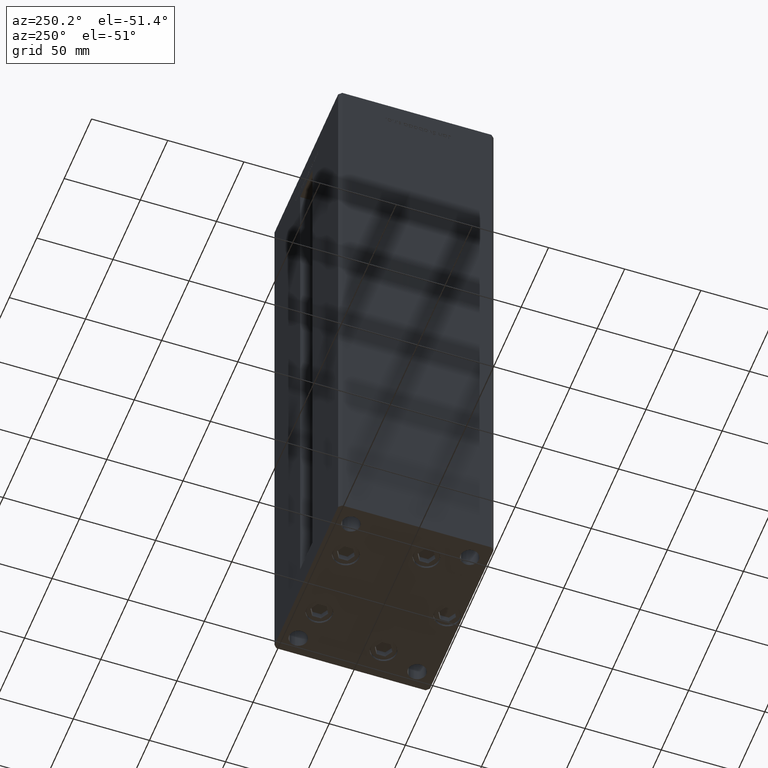
[diagram: clean part render]
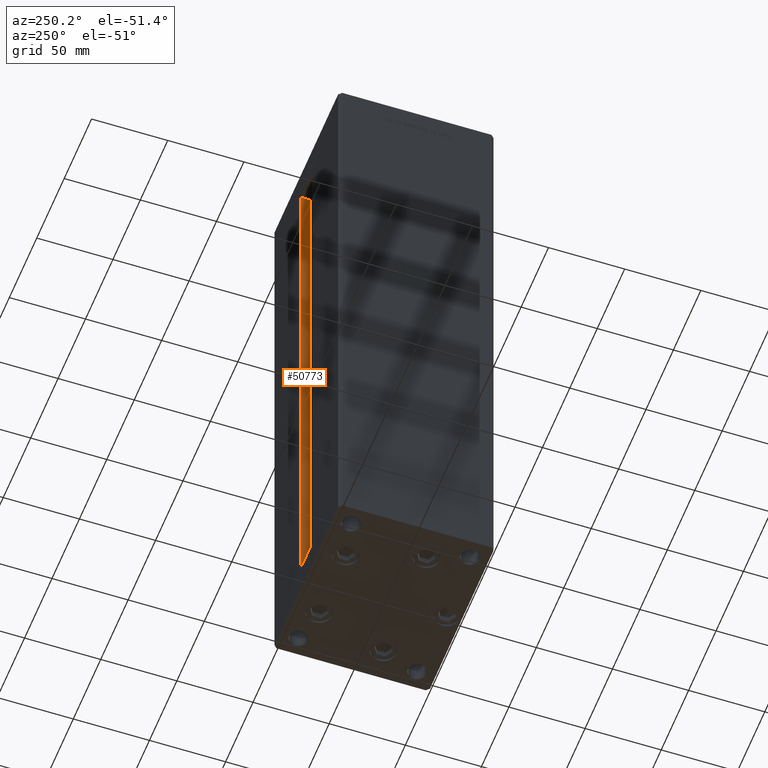
[diagram: same view with one face highlighted and labeled with its STEP entity id]
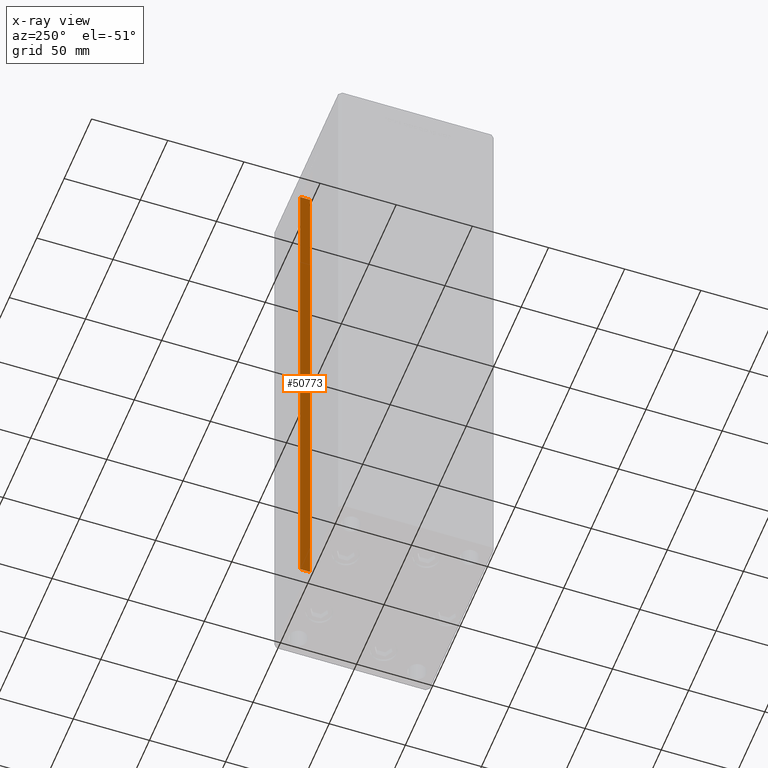
[diagram: x-ray of the same camera — body ghosted, the highlighted face saturated]
A machine part, auxiliary view. The second image highlights one B-rep face of the part: STEP entity #50773.
The next image is the same camera in x-ray: the body ghosted, the highlighted face saturated — about 0% of this face is hidden behind the body in this view.
In plain terms, the highlighted planar face has unit normal (1, 0, 0).
Its self-contained STEP definition (entity closure, byte-faithful):
#349 = ORIENTED_EDGE ( 'NONE', *, *, #36960, .F. ) ;
#506 = VECTOR ( 'NONE', #1424, 1000.000000000000000 ) ;
#666 = CARTESIAN_POINT ( 'NONE',  ( 11.25000000000000178, 0.000000000000000000, 368.5000000000000000 ) ) ;
#1117 = CARTESIAN_POINT ( 'NONE',  ( 11.24999999999999467, 51.00000000000000000, 368.5000000000000000 ) ) ;
#1424 = DIRECTION ( 'NONE',  ( -0.000000000000000000, -0.000000000000000000, 1.000000000000000000 ) ) ;
#2406 = VECTOR ( 'NONE', #30652, 1000.000000000000000 ) ;
#3787 = CARTESIAN_POINT ( 'NONE',  ( 11.25000000000000178, 51.00000000000000000, 0.000000000000000000 ) ) ;
#3971 = VECTOR ( 'NONE', #37668, 1000.000000000000000 ) ;
#5887 = ORIENTED_EDGE ( 'NONE', *, *, #15053, .T. ) ;
#6299 = VECTOR ( 'NONE', #27891, 1000.000000000000000 ) ;
#8328 = CARTESIAN_POINT ( 'NONE',  ( 11.25000000000000178, 44.50000000000000000, 0.000000000000000000 ) ) ;
#11410 = CARTESIAN_POINT ( 'NONE',  ( 11.25000000000000178, 44.50000000000000000, 0.000000000000000000 ) ) ;
#11566 = AXIS2_PLACEMENT_3D ( 'NONE', #47835, #11714, #38969 ) ;
#11714 = DIRECTION ( 'NONE',  ( 1.000000000000000000, -0.000000000000000000, 0.000000000000000000 ) ) ;
#11931 = LINE ( 'NONE', #666, #6299 ) ;
#14691 = CARTESIAN_POINT ( 'NONE',  ( 11.25000000000000178, 44.50000000000000000, 0.000000000000000000 ) ) ;
#15053 = EDGE_CURVE ( 'NONE', #23433, #24909, #47267, .T. ) ;
#16368 = CARTESIAN_POINT ( 'NONE',  ( 11.25000000000000178, 44.50000000000000000, 368.5000000000000000 ) ) ;
#16889 = VERTEX_POINT ( 'NONE', #1117 ) ;
#20513 = EDGE_CURVE ( 'NONE', #43647, #16889, #25873, .T. ) ;
#23067 = EDGE_CURVE ( 'NONE', #23433, #43647, #35123, .T. ) ;
#23433 = VERTEX_POINT ( 'NONE', #8328 ) ;
#24024 = FACE_OUTER_BOUND ( 'NONE', #41141, .T. ) ;
#24909 = VERTEX_POINT ( 'NONE', #16368 ) ;
#25230 = ORIENTED_EDGE ( 'NONE', *, *, #20513, .F. ) ;
#25873 = LINE ( 'NONE', #29522, #3971 ) ;
#27891 = DIRECTION ( 'NONE',  ( -0.000000000000000000, -1.000000000000000000, 0.000000000000000000 ) ) ;
#29522 = CARTESIAN_POINT ( 'NONE',  ( 11.25000000000000178, 51.00000000000000000, 0.000000000000000000 ) ) ;
#30652 = DIRECTION ( 'NONE',  ( 0.000000000000000000, 1.000000000000000000, 0.000000000000000000 ) ) ;
#35123 = LINE ( 'NONE', #14691, #2406 ) ;
#36960 = EDGE_CURVE ( 'NONE', #16889, #24909, #11931, .T. ) ;
#37668 = DIRECTION ( 'NONE',  ( -0.000000000000000000, -0.000000000000000000, 1.000000000000000000 ) ) ;
#38969 = DIRECTION ( 'NONE',  ( 0.000000000000000000, 0.000000000000000000, -1.000000000000000000 ) ) ;
#41141 = EDGE_LOOP ( 'NONE', ( #25230, #44925, #5887, #349 ) ) ;
#43647 = VERTEX_POINT ( 'NONE', #3787 ) ;
#44925 = ORIENTED_EDGE ( 'NONE', *, *, #23067, .F. ) ;
#47267 = LINE ( 'NONE', #11410, #506 ) ;
#47835 = CARTESIAN_POINT ( 'NONE',  ( 11.25000000000000178, 44.50000000000000000, 0.000000000000000000 ) ) ;
#50773 = ADVANCED_FACE ( 'NONE', ( #24024 ), #51262, .F. ) ;
#51262 = PLANE ( 'NONE',  #11566 ) ;